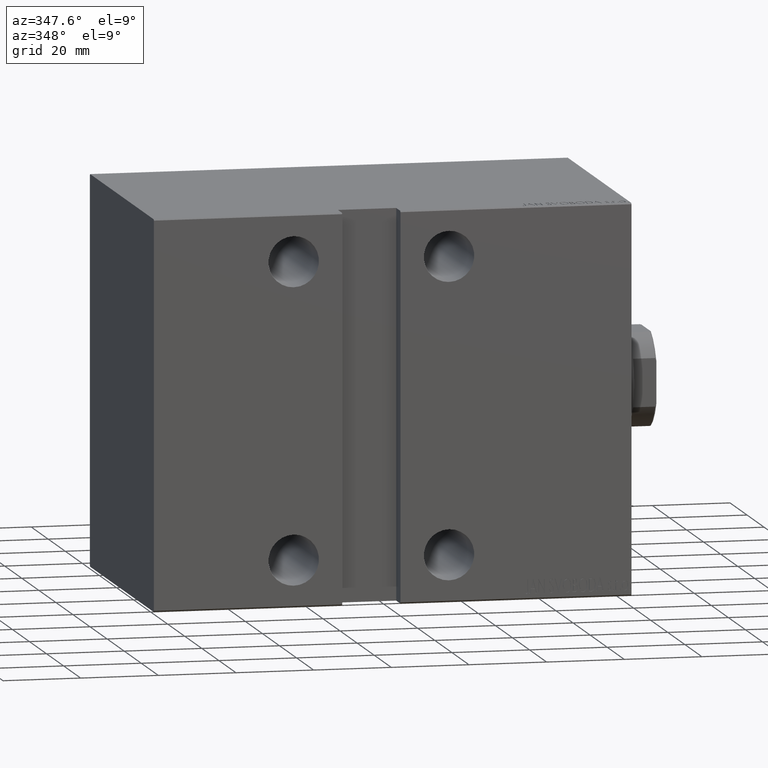
[diagram: clean part render]
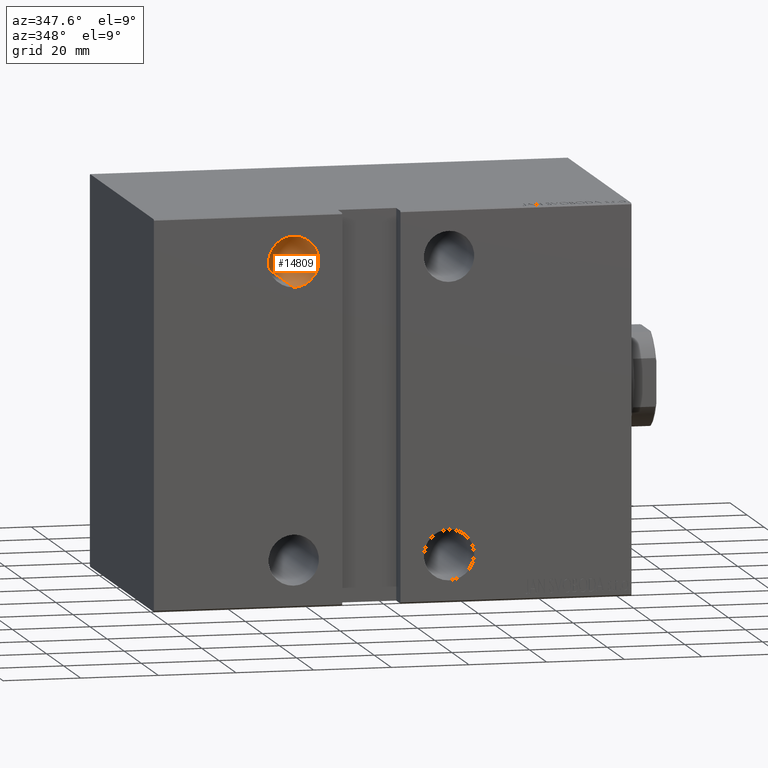
[diagram: same view with one face highlighted and labeled with its STEP entity id]
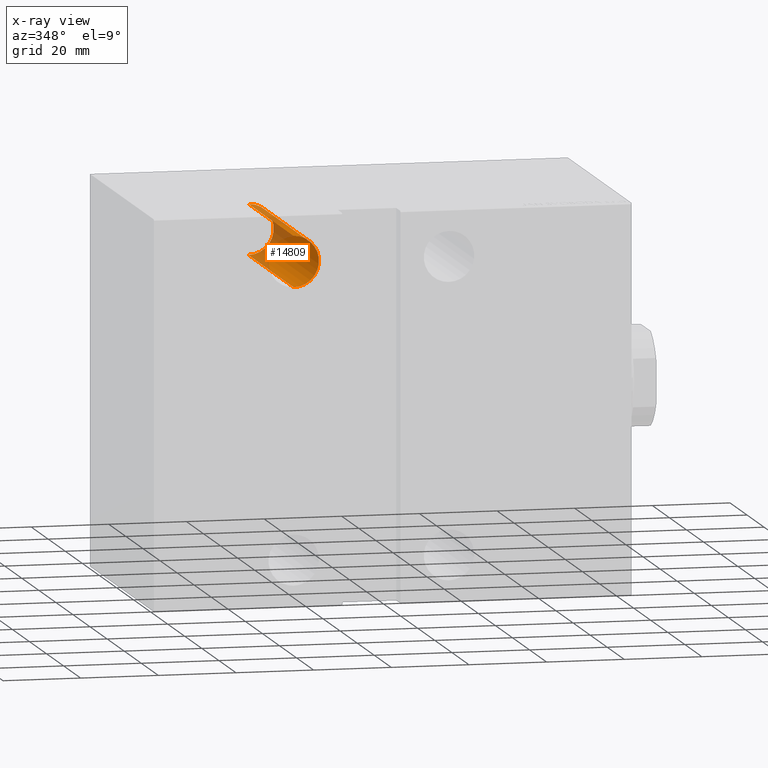
[diagram: x-ray of the same camera — body ghosted, the highlighted face saturated]
A machine part, auxiliary view. The second image highlights one B-rep face of the part: STEP entity #14809.
The next image is the same camera in x-ray: the body ghosted, the highlighted face saturated — about 25% of this face is hidden behind the body in this view.
In plain terms, the highlighted cylindrical surface (edge-blend (fillet) strip) has radius 6.5 mm, axis along (0, -1, 0).
Its self-contained STEP definition (entity closure, byte-faithful):
#626 = VECTOR ( 'NONE', #37993, 1000.000000000000000 ) ;
#719 = CIRCLE ( 'NONE', #8389, 6.500000000000005329 ) ;
#996 = VERTEX_POINT ( 'NONE', #33112 ) ;
#1145 = CARTESIAN_POINT ( 'NONE',  ( 87.00000000000001421, -15.50000000000000000, 31.49999999999999289 ) ) ;
#1242 = CYLINDRICAL_SURFACE ( 'NONE', #9149, 6.500000000000005329 ) ;
#1931 = VERTEX_POINT ( 'NONE', #41728 ) ;
#3358 = CIRCLE ( 'NONE', #6846, 6.499999999999999112 ) ;
#3601 = DIRECTION ( 'NONE',  ( -0.000000000000000000, 1.000000000000000000, 1.261617073437677752E-16 ) ) ;
#3990 = EDGE_CURVE ( 'NONE', #996, #15261, #3358, .T. ) ;
#4075 = DIRECTION ( 'NONE',  ( -0.000000000000000000, 1.000000000000000000, -0.000000000000000000 ) ) ;
#4301 = FACE_OUTER_BOUND ( 'NONE', #27858, .T. ) ;
#6846 = AXIS2_PLACEMENT_3D ( 'NONE', #24029, #27093, #40406 ) ;
#6916 = CARTESIAN_POINT ( 'NONE',  ( 87.00000000000001421, -15.50000000000000000, 37.99999999999999289 ) ) ;
#7570 = DIRECTION ( 'NONE',  ( 0.000000000000000000, 0.000000000000000000, -1.000000000000000000 ) ) ;
#8389 = AXIS2_PLACEMENT_3D ( 'NONE', #6916, #4075, #7570 ) ;
#9149 = AXIS2_PLACEMENT_3D ( 'NONE', #33736, #23923, #36797 ) ;
#10039 = CARTESIAN_POINT ( 'NONE',  ( 87.00000000000001421, 37.49999999999999289, 31.50000000000000000 ) ) ;
#10151 = EDGE_CURVE ( 'NONE', #10747, #15261, #11392, .T. ) ;
#10747 = VERTEX_POINT ( 'NONE', #1145 ) ;
#11392 = LINE ( 'NONE', #24678, #626 ) ;
#12156 = EDGE_CURVE ( 'NONE', #1931, #996, #16474, .T. ) ;
#14796 = EDGE_CURVE ( 'NONE', #10747, #1931, #719, .T. ) ;
#14809 = ADVANCED_FACE ( 'NONE', ( #4301 ), #1242, .F. ) ;
#15261 = VERTEX_POINT ( 'NONE', #10039 ) ;
#16474 = LINE ( 'NONE', #26279, #20181 ) ;
#17983 = ORIENTED_EDGE ( 'NONE', *, *, #10151, .T. ) ;
#20181 = VECTOR ( 'NONE', #3601, 1000.000000000000000 ) ;
#23923 = DIRECTION ( 'NONE',  ( -0.000000000000000000, 1.000000000000000000, 1.261617073437677752E-16 ) ) ;
#24029 = CARTESIAN_POINT ( 'NONE',  ( 87.00000000000001421, 37.49999999999999289, 38.00000000000000000 ) ) ;
#24678 = CARTESIAN_POINT ( 'NONE',  ( 87.00000000000001421, -37.50000000000003553, 31.49999999999998579 ) ) ;
#25244 = ORIENTED_EDGE ( 'NONE', *, *, #14796, .F. ) ;
#26279 = CARTESIAN_POINT ( 'NONE',  ( 87.00000000000001421, -37.50000000000003553, 44.50000000000000000 ) ) ;
#27093 = DIRECTION ( 'NONE',  ( 0.000000000000000000, -1.000000000000000000, -1.387778780781445182E-16 ) ) ;
#27858 = EDGE_LOOP ( 'NONE', ( #25244, #17983, #34115, #38338 ) ) ;
#33112 = CARTESIAN_POINT ( 'NONE',  ( 87.00000000000001421, 37.49999999999999289, 44.50000000000000000 ) ) ;
#33736 = CARTESIAN_POINT ( 'NONE',  ( 87.00000000000001421, -37.50000000000003553, 37.99999999999999289 ) ) ;
#34115 = ORIENTED_EDGE ( 'NONE', *, *, #3990, .F. ) ;
#36797 = DIRECTION ( 'NONE',  ( 0.000000000000000000, 0.000000000000000000, 1.000000000000000000 ) ) ;
#37993 = DIRECTION ( 'NONE',  ( -0.000000000000000000, 1.000000000000000000, 1.261617073437677752E-16 ) ) ;
#38338 = ORIENTED_EDGE ( 'NONE', *, *, #12156, .F. ) ;
#40406 = DIRECTION ( 'NONE',  ( 0.000000000000000000, 0.000000000000000000, -1.000000000000000000 ) ) ;
#41728 = CARTESIAN_POINT ( 'NONE',  ( 87.00000000000001421, -15.50000000000000000, 44.50000000000000000 ) ) ;